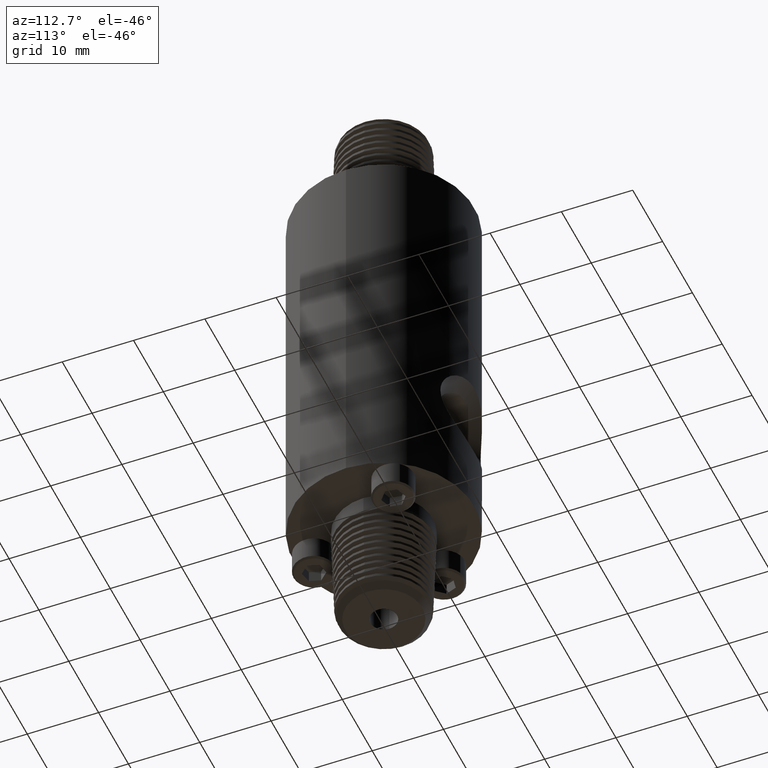
[diagram: clean part render]
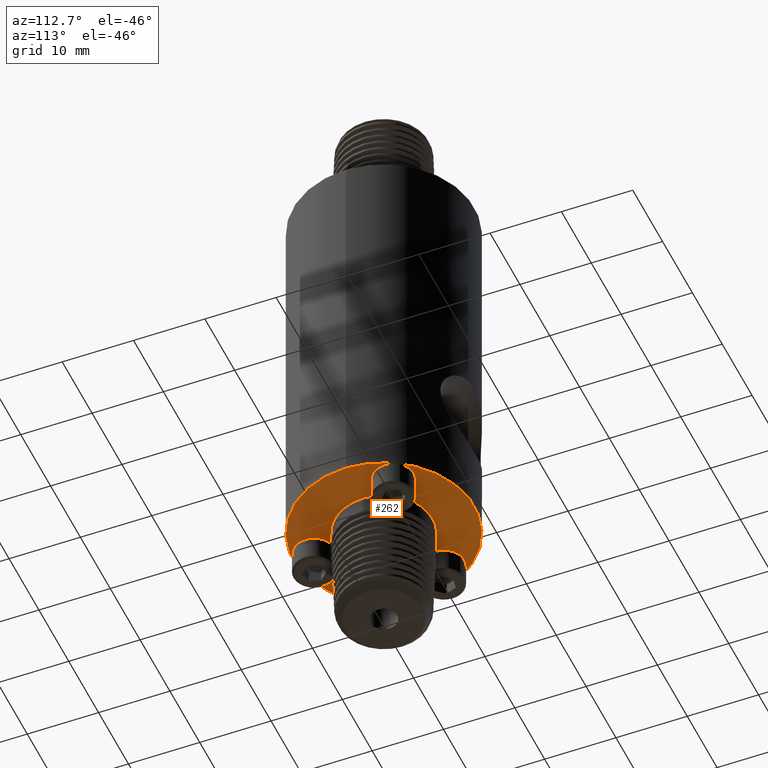
[diagram: same view with one face highlighted and labeled with its STEP entity id]
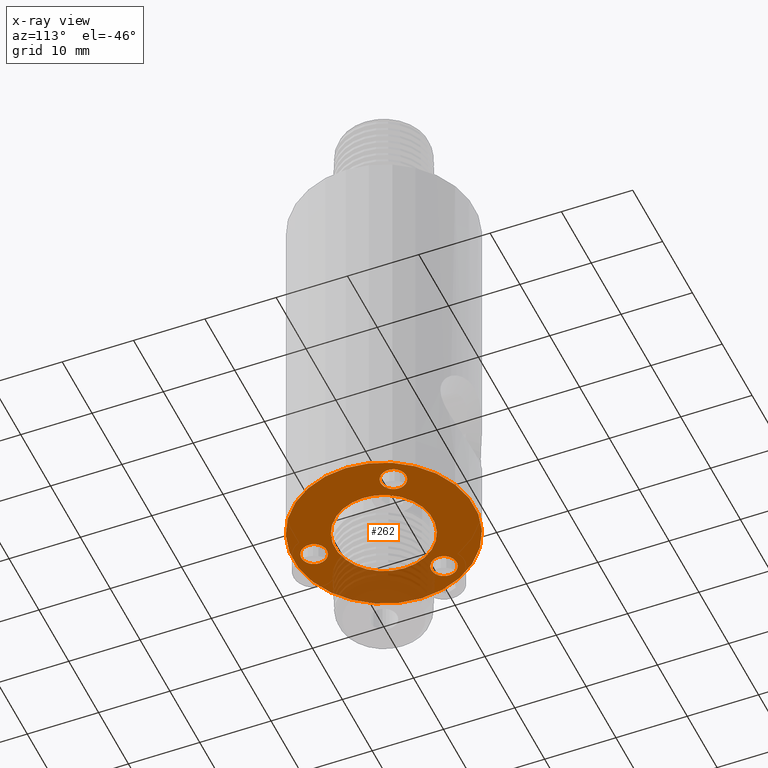
[diagram: x-ray of the same camera — body ghosted, the highlighted face saturated]
A machine part, auxiliary view. The second image highlights one B-rep face of the part: STEP entity #262.
The next image is the same camera in x-ray: the body ghosted, the highlighted face saturated — about 25% of this face is hidden behind the body in this view.
In plain terms, the highlighted planar face has unit normal (0, 0, 1).
Its self-contained STEP definition (entity closure, byte-faithful):
#7 = ORIENTED_EDGE ( 'NONE', *, *, #3352, .F. ) ;
#10 = ORIENTED_EDGE ( 'NONE', *, *, #3360, .T. ) ;
#14 = ORIENTED_EDGE ( 'NONE', *, *, #3227, .T. ) ;
#19 = ORIENTED_EDGE ( 'NONE', *, *, #380, .T. ) ;
#24 = ORIENTED_EDGE ( 'NONE', *, *, #3310, .T. ) ;
#37 = ORIENTED_EDGE ( 'NONE', *, *, #3275, .T. ) ;
#39 = ORIENTED_EDGE ( 'NONE', *, *, #3245, .T. ) ;
#49 = ORIENTED_EDGE ( 'NONE', *, *, #3255, .T. ) ;
#58 = ORIENTED_EDGE ( 'NONE', *, *, #1078, .F. ) ;
#77 = ORIENTED_EDGE ( 'NONE', *, *, #3336, .T. ) ;
#262 = ADVANCED_FACE ( 'NONE', ( #3177, #3163, #3176, #3165, #3199 ), #5912, .F. ) ;
#380 = EDGE_CURVE ( 'NONE', #3622, #3621, #4375, .T. ) ;
#445 = DIRECTION ( 'NONE',  ( 1.000000000000000000, 0.0000000000000000000, 0.0000000000000000000 ) ) ;
#497 = CARTESIAN_POINT ( 'NONE',  ( 0.0000000000000000000, 0.0000000000000000000, -0.9449999999999998400 ) ) ;
#511 = DIRECTION ( 'NONE',  ( -0.0000000000000000000, -0.0000000000000000000, 1.000000000000000000 ) ) ;
#619 = CARTESIAN_POINT ( 'NONE',  ( 0.0000000000000000000, 0.0000000000000000000, -0.9449999999999998400 ) ) ;
#622 = DIRECTION ( 'NONE',  ( -0.0000000000000000000, -0.0000000000000000000, 1.000000000000000000 ) ) ;
#624 = DIRECTION ( 'NONE',  ( 1.000000000000000000, 0.0000000000000000000, 0.0000000000000000000 ) ) ;
#629 = CARTESIAN_POINT ( 'NONE',  ( 0.0000000000000000000, -0.3850000000000000100, -0.9449999999999998400 ) ) ;
#642 = DIRECTION ( 'NONE',  ( -0.0000000000000000000, -0.0000000000000000000, 1.000000000000000000 ) ) ;
#679 = DIRECTION ( 'NONE',  ( 1.000000000000000000, 0.0000000000000000000, 0.0000000000000000000 ) ) ;
#713 = CARTESIAN_POINT ( 'NONE',  ( -0.3334197804570101000, 0.1924999999999979500, -0.9449999999999998400 ) ) ;
#840 = CARTESIAN_POINT ( 'NONE',  ( 0.4036697804570086300, 0.1925000000000004800, -0.9449999999999998400 ) ) ;
#876 = DIRECTION ( 'NONE',  ( 1.000000000000000000, 0.0000000000000000000, 0.0000000000000000000 ) ) ;
#897 = CARTESIAN_POINT ( 'NONE',  ( 0.2631697804570086200, 0.1925000000000004800, -0.9449999999999998400 ) ) ;
#907 = DIRECTION ( 'NONE',  ( -0.0000000000000000000, -0.0000000000000000000, 1.000000000000000000 ) ) ;
#949 = CARTESIAN_POINT ( 'NONE',  ( -0.4999999999999997800, 6.123233995736763600E-017, -0.9449999999999998400 ) ) ;
#950 = CARTESIAN_POINT ( 'NONE',  ( 0.4999999999999997800, 0.0000000000000000000, -0.9449999999999998400 ) ) ;
#951 = CARTESIAN_POINT ( 'NONE',  ( 0.2699999999999999100, 0.0000000000000000000, -0.9449999999999998400 ) ) ;
#952 = CARTESIAN_POINT ( 'NONE',  ( -0.2699999999999999100, 3.306546357697852500E-017, -0.9449999999999998400 ) ) ;
#970 = CARTESIAN_POINT ( 'NONE',  ( -0.4036697804570100700, 0.1924999999999979500, -0.9449999999999998400 ) ) ;
#973 = CARTESIAN_POINT ( 'NONE',  ( -0.2631697804570100600, 0.1924999999999979500, -0.9449999999999998400 ) ) ;
#986 = CARTESIAN_POINT ( 'NONE',  ( 0.07025000000000000700, -0.3850000000000000100, -0.9449999999999998400 ) ) ;
#987 = CARTESIAN_POINT ( 'NONE',  ( -0.07025000000000000700, -0.3850000000000000100, -0.9449999999999998400 ) ) ;
#1078 = EDGE_CURVE ( 'NONE', #3598, #3599, #4486, .T. ) ;
#1253 = EDGE_LOOP ( 'NONE', ( #14, #24 ) ) ;
#1254 = EDGE_LOOP ( 'NONE', ( #49, #19 ) ) ;
#1259 = EDGE_LOOP ( 'NONE', ( #10, #37 ) ) ;
#1260 = EDGE_LOOP ( 'NONE', ( #39, #77 ) ) ;
#1396 = EDGE_LOOP ( 'NONE', ( #7, #58 ) ) ;
#1479 = AXIS2_PLACEMENT_3D ( 'NONE', #5914, #5915, #5916 ) ;
#1559 = AXIS2_PLACEMENT_3D ( 'NONE', #2268, #2437, #2430 ) ;
#1572 = AXIS2_PLACEMENT_3D ( 'NONE', #2864, #2677, #2943 ) ;
#1704 = AXIS2_PLACEMENT_3D ( 'NONE', #1942, #2282, #2322 ) ;
#1712 = AXIS2_PLACEMENT_3D ( 'NONE', #2502, #2855, #2423 ) ;
#1720 = AXIS2_PLACEMENT_3D ( 'NONE', #2199, #2358, #2356 ) ;
#1728 = AXIS2_PLACEMENT_3D ( 'NONE', #2095, #2114, #1957 ) ;
#1747 = AXIS2_PLACEMENT_3D ( 'NONE', #713, #907, #876 ) ;
#1765 = AXIS2_PLACEMENT_3D ( 'NONE', #497, #622, #624 ) ;
#1774 = AXIS2_PLACEMENT_3D ( 'NONE', #619, #511, #445 ) ;
#1777 = AXIS2_PLACEMENT_3D ( 'NONE', #629, #642, #679 ) ;
#1942 = CARTESIAN_POINT ( 'NONE',  ( -0.3334197804570101000, 0.1924999999999979500, -0.9449999999999998400 ) ) ;
#1957 = DIRECTION ( 'NONE',  ( 1.000000000000000000, 0.0000000000000000000, 0.0000000000000000000 ) ) ;
#2095 = CARTESIAN_POINT ( 'NONE',  ( 0.0000000000000000000, -0.3850000000000000100, -0.9449999999999998400 ) ) ;
#2114 = DIRECTION ( 'NONE',  ( -0.0000000000000000000, -0.0000000000000000000, 1.000000000000000000 ) ) ;
#2199 = CARTESIAN_POINT ( 'NONE',  ( 0.3334197804570086500, 0.1925000000000004800, -0.9449999999999998400 ) ) ;
#2268 = CARTESIAN_POINT ( 'NONE',  ( 0.3334197804570086500, 0.1925000000000004800, -0.9449999999999998400 ) ) ;
#2282 = DIRECTION ( 'NONE',  ( -0.0000000000000000000, -0.0000000000000000000, 1.000000000000000000 ) ) ;
#2322 = DIRECTION ( 'NONE',  ( 1.000000000000000000, 0.0000000000000000000, 0.0000000000000000000 ) ) ;
#2356 = DIRECTION ( 'NONE',  ( 1.000000000000000000, 0.0000000000000000000, 0.0000000000000000000 ) ) ;
#2358 = DIRECTION ( 'NONE',  ( -0.0000000000000000000, -0.0000000000000000000, 1.000000000000000000 ) ) ;
#2423 = DIRECTION ( 'NONE',  ( 1.000000000000000000, 0.0000000000000000000, 0.0000000000000000000 ) ) ;
#2430 = DIRECTION ( 'NONE',  ( 1.000000000000000000, 0.0000000000000000000, 0.0000000000000000000 ) ) ;
#2437 = DIRECTION ( 'NONE',  ( -0.0000000000000000000, -0.0000000000000000000, 1.000000000000000000 ) ) ;
#2502 = CARTESIAN_POINT ( 'NONE',  ( 0.0000000000000000000, 0.0000000000000000000, -0.9449999999999998400 ) ) ;
#2677 = DIRECTION ( 'NONE',  ( -0.0000000000000000000, -0.0000000000000000000, 1.000000000000000000 ) ) ;
#2855 = DIRECTION ( 'NONE',  ( -0.0000000000000000000, -0.0000000000000000000, 1.000000000000000000 ) ) ;
#2864 = CARTESIAN_POINT ( 'NONE',  ( 0.0000000000000000000, 0.0000000000000000000, -0.9449999999999998400 ) ) ;
#2943 = DIRECTION ( 'NONE',  ( 1.000000000000000000, 0.0000000000000000000, 0.0000000000000000000 ) ) ;
#3163 = FACE_BOUND ( 'NONE', #1253, .T. ) ;
#3165 = FACE_OUTER_BOUND ( 'NONE', #1396, .T. ) ;
#3176 = FACE_BOUND ( 'NONE', #1259, .T. ) ;
#3177 = FACE_BOUND ( 'NONE', #1254, .T. ) ;
#3199 = FACE_BOUND ( 'NONE', #1260, .T. ) ;
#3227 = EDGE_CURVE ( 'NONE', #3613, #3615, #4882, .T. ) ;
#3245 = EDGE_CURVE ( 'NONE', #3600, #3601, #4908, .T. ) ;
#3255 = EDGE_CURVE ( 'NONE', #3621, #3622, #4919, .T. ) ;
#3275 = EDGE_CURVE ( 'NONE', #3607, #3606, #4952, .T. ) ;
#3310 = EDGE_CURVE ( 'NONE', #3615, #3613, #5000, .T. ) ;
#3336 = EDGE_CURVE ( 'NONE', #3601, #3600, #5031, .T. ) ;
#3352 = EDGE_CURVE ( 'NONE', #3599, #3598, #5054, .T. ) ;
#3360 = EDGE_CURVE ( 'NONE', #3606, #3607, #5067, .T. ) ;
#3598 = VERTEX_POINT ( 'NONE', #949 ) ;
#3599 = VERTEX_POINT ( 'NONE', #950 ) ;
#3600 = VERTEX_POINT ( 'NONE', #951 ) ;
#3601 = VERTEX_POINT ( 'NONE', #952 ) ;
#3606 = VERTEX_POINT ( 'NONE', #986 ) ;
#3607 = VERTEX_POINT ( 'NONE', #987 ) ;
#3613 = VERTEX_POINT ( 'NONE', #973 ) ;
#3615 = VERTEX_POINT ( 'NONE', #970 ) ;
#3621 = VERTEX_POINT ( 'NONE', #840 ) ;
#3622 = VERTEX_POINT ( 'NONE', #897 ) ;
#4375 = CIRCLE ( 'NONE', #1559, 0.07025000000000002100 ) ;
#4486 = CIRCLE ( 'NONE', #1572, 0.4999999999999997800 ) ;
#4882 = CIRCLE ( 'NONE', #1704, 0.07025000000000002100 ) ;
#4908 = CIRCLE ( 'NONE', #1712, 0.2699999999999999100 ) ;
#4919 = CIRCLE ( 'NONE', #1720, 0.07025000000000002100 ) ;
#4952 = CIRCLE ( 'NONE', #1728, 0.07025000000000000700 ) ;
#5000 = CIRCLE ( 'NONE', #1747, 0.07025000000000002100 ) ;
#5031 = CIRCLE ( 'NONE', #1765, 0.2699999999999999100 ) ;
#5054 = CIRCLE ( 'NONE', #1774, 0.4999999999999997800 ) ;
#5067 = CIRCLE ( 'NONE', #1777, 0.07025000000000000700 ) ;
#5912 = PLANE ( 'NONE',  #1479 ) ;
#5914 = CARTESIAN_POINT ( 'NONE',  ( 0.0000000000000000000, 0.4999999999999997800, -0.9449999999999998400 ) ) ;
#5915 = DIRECTION ( 'NONE',  ( 0.0000000000000000000, -0.0000000000000000000, 1.000000000000000000 ) ) ;
#5916 = DIRECTION ( 'NONE',  ( 1.000000000000000000, 0.0000000000000000000, 0.0000000000000000000 ) ) ;